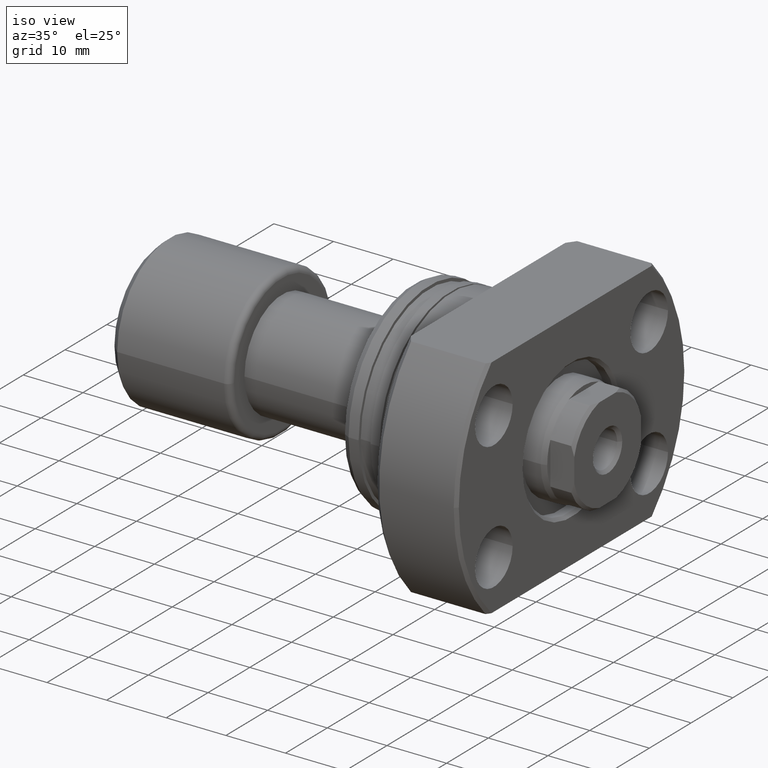
[diagram: clean part render]
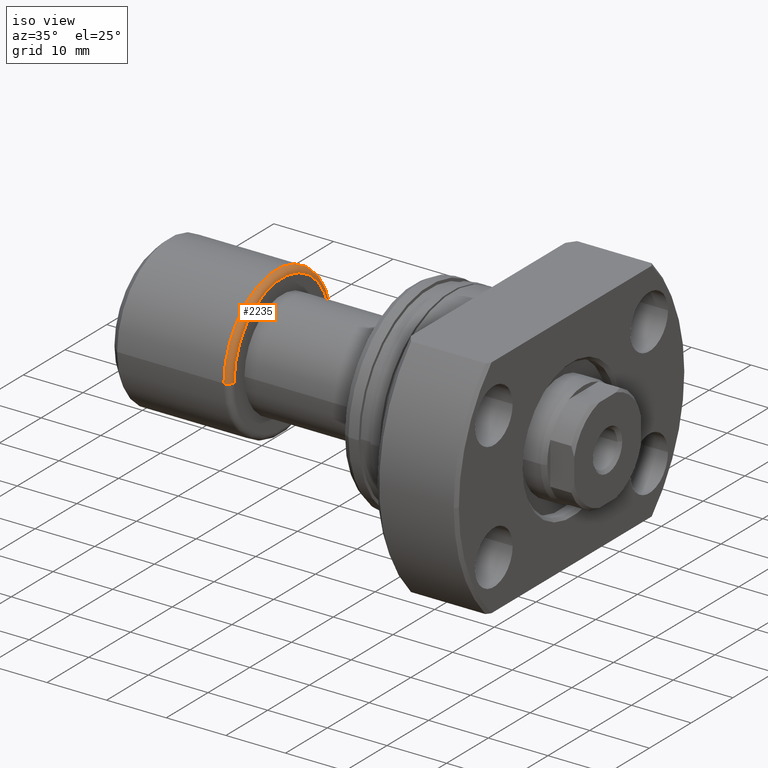
[diagram: same view with one face highlighted and labeled with its STEP entity id]
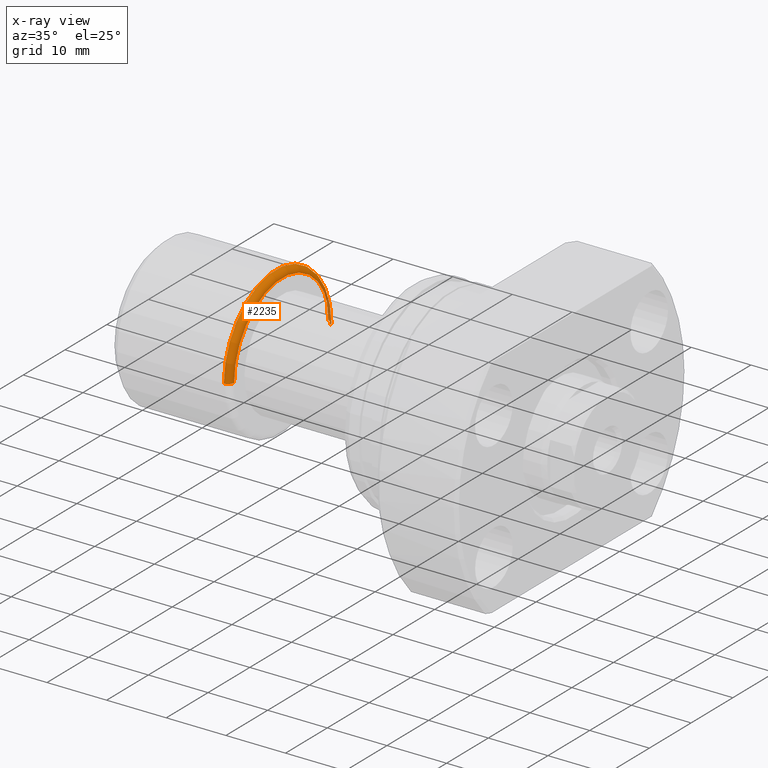
[diagram: x-ray of the same camera — body ghosted, the highlighted face saturated]
A machine part, iso view. The second image highlights one B-rep face of the part: STEP entity #2235.
The next image is the same camera in x-ray: the body ghosted, the highlighted face saturated — about 4% of this face is hidden behind the body in this view.
In plain terms, the highlighted toroidal blend (fillet) surface has major radius 11.5 mm and minor (blend) radius 1 mm.
Its self-contained STEP definition (entity closure, byte-faithful):
#12 = EDGE_CURVE ( 'NONE', #151, #2906, #2867, .T. ) ;
#64 = AXIS2_PLACEMENT_3D ( 'NONE', #293, #1526, #1296 ) ;
#79 = ORIENTED_EDGE ( 'NONE', *, *, #3130, .T. ) ;
#81 = TOROIDAL_SURFACE ( 'NONE', #1547, 11.50000000000000000, 1.000000000000000888 ) ;
#151 = VERTEX_POINT ( 'NONE', #3054 ) ;
#293 = CARTESIAN_POINT ( 'NONE',  ( 20.39999999999999858, 2.181866337020894116E-16, 0.000000000000000000 ) ) ;
#325 = AXIS2_PLACEMENT_3D ( 'NONE', #3091, #3123, #870 ) ;
#411 = DIRECTION ( 'NONE',  ( -1.000000000000000000, -1.069542322069065801E-17, -0.000000000000000000 ) ) ;
#637 = CARTESIAN_POINT ( 'NONE',  ( 19.39999999999999858, 0.000000000000000000, 0.000000000000000000 ) ) ;
#817 = DIRECTION ( 'NONE',  ( 0.000000000000000000, -1.000000000000000000, -1.224646799147353454E-16 ) ) ;
#870 = DIRECTION ( 'NONE',  ( 0.000000000000000000, -1.000000000000000000, 0.000000000000000000 ) ) ;
#886 = CARTESIAN_POINT ( 'NONE',  ( 19.40000000000000213, -12.50000000000000000, 0.000000000000000000 ) ) ;
#905 = AXIS2_PLACEMENT_3D ( 'NONE', #1498, #2681, #2487 ) ;
#1105 = DIRECTION ( 'NONE',  ( 1.309811581274509052E-33, -1.224646799147353207E-16, 1.000000000000000000 ) ) ;
#1117 = DIRECTION ( 'NONE',  ( 1.069542322069065955E-17, -1.000000000000000000, 0.000000000000000000 ) ) ;
#1182 = VERTEX_POINT ( 'NONE', #886 ) ;
#1200 = CARTESIAN_POINT ( 'NONE',  ( 19.40000000000000213, 12.50000000000000000, 1.530808498934191521E-15 ) ) ;
#1207 = ORIENTED_EDGE ( 'NONE', *, *, #1869, .F. ) ;
#1276 = CIRCLE ( 'NONE', #905, 1.000000000000000888 ) ;
#1296 = DIRECTION ( 'NONE',  ( 0.000000000000000000, -1.000000000000000000, 0.000000000000000000 ) ) ;
#1326 = ORIENTED_EDGE ( 'NONE', *, *, #1453, .F. ) ;
#1346 = FACE_OUTER_BOUND ( 'NONE', #1820, .T. ) ;
#1453 = EDGE_CURVE ( 'NONE', #1182, #1915, #2571, .T. ) ;
#1498 = CARTESIAN_POINT ( 'NONE',  ( 19.39999999999999858, -11.50000000000000000, 0.000000000000000000 ) ) ;
#1526 = DIRECTION ( 'NONE',  ( -1.000000000000000000, -1.069542322069065801E-17, -0.000000000000000000 ) ) ;
#1547 = AXIS2_PLACEMENT_3D ( 'NONE', #637, #411, #1117 ) ;
#1820 = EDGE_LOOP ( 'NONE', ( #2048, #79, #1326, #1207 ) ) ;
#1869 = EDGE_CURVE ( 'NONE', #151, #1182, #1276, .T. ) ;
#1915 = VERTEX_POINT ( 'NONE', #1200 ) ;
#2048 = ORIENTED_EDGE ( 'NONE', *, *, #12, .T. ) ;
#2068 = CARTESIAN_POINT ( 'NONE',  ( 19.39999999999999858, 11.50000000000000000, 1.408343819019456176E-15 ) ) ;
#2235 = ADVANCED_FACE ( 'NONE', ( #1346 ), #81, .T. ) ;
#2291 = CIRCLE ( 'NONE', #2805, 1.000000000000000888 ) ;
#2487 = DIRECTION ( 'NONE',  ( -1.000000000000000000, 0.000000000000000000, 0.000000000000000000 ) ) ;
#2571 = CIRCLE ( 'NONE', #325, 12.50000000000000000 ) ;
#2681 = DIRECTION ( 'NONE',  ( 0.000000000000000000, 0.000000000000000000, -1.000000000000000000 ) ) ;
#2749 = CARTESIAN_POINT ( 'NONE',  ( 20.39999999999999858, 11.50000000000000000, 1.469576158976823947E-15 ) ) ;
#2805 = AXIS2_PLACEMENT_3D ( 'NONE', #2068, #1105, #817 ) ;
#2867 = CIRCLE ( 'NONE', #64, 11.50000000000000000 ) ;
#2906 = VERTEX_POINT ( 'NONE', #2749 ) ;
#3054 = CARTESIAN_POINT ( 'NONE',  ( 20.39999999999999858, -11.50000000000000000, 0.000000000000000000 ) ) ;
#3091 = CARTESIAN_POINT ( 'NONE',  ( 19.40000000000000213, 2.074912104813987675E-16, 0.000000000000000000 ) ) ;
#3123 = DIRECTION ( 'NONE',  ( -1.000000000000000000, -1.069542322069065801E-17, -0.000000000000000000 ) ) ;
#3130 = EDGE_CURVE ( 'NONE', #2906, #1915, #2291, .T. ) ;